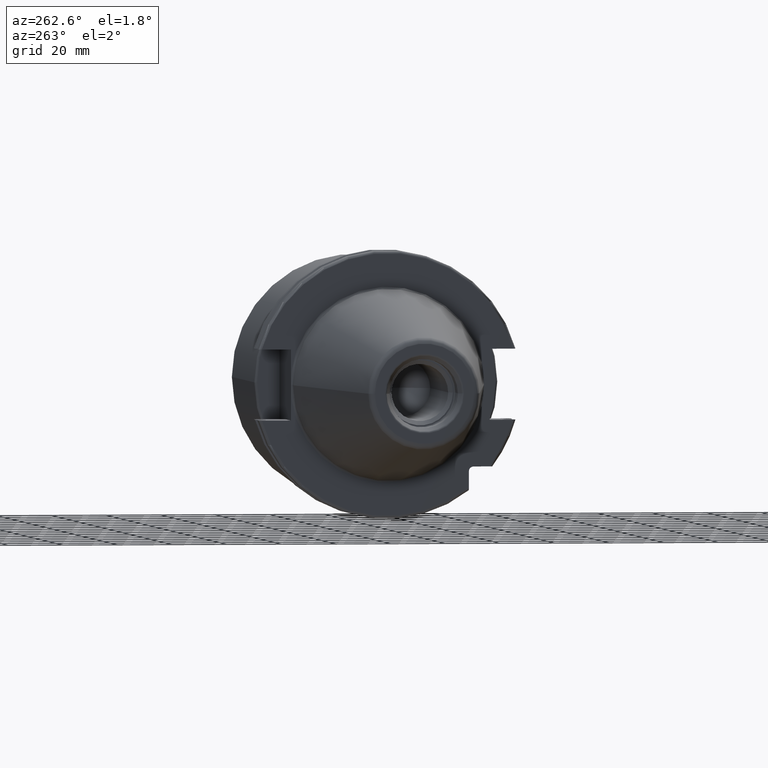
[diagram: clean part render]
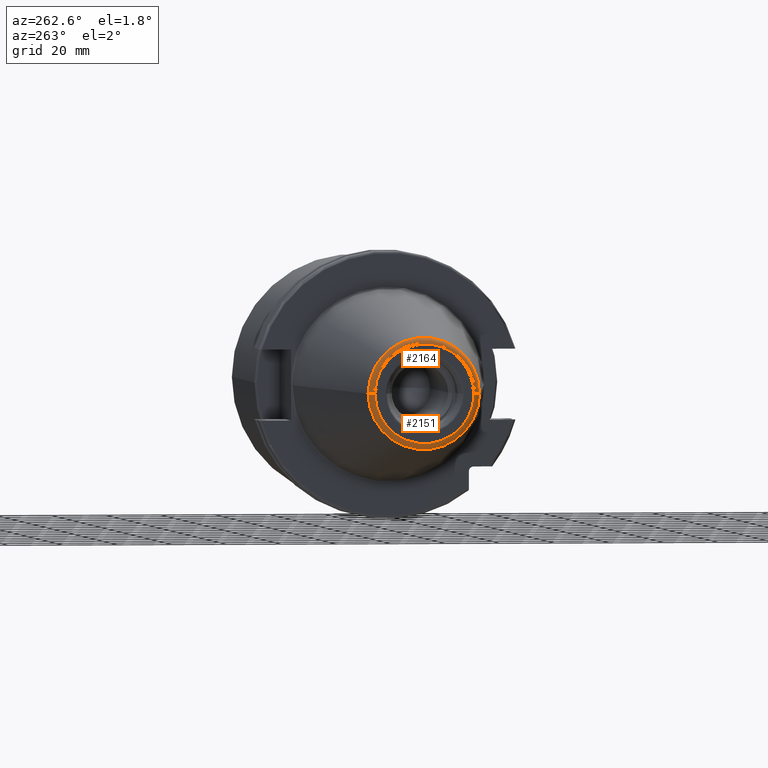
[diagram: same view with one multi-face feature highlighted, each face labeled with its STEP entity id]
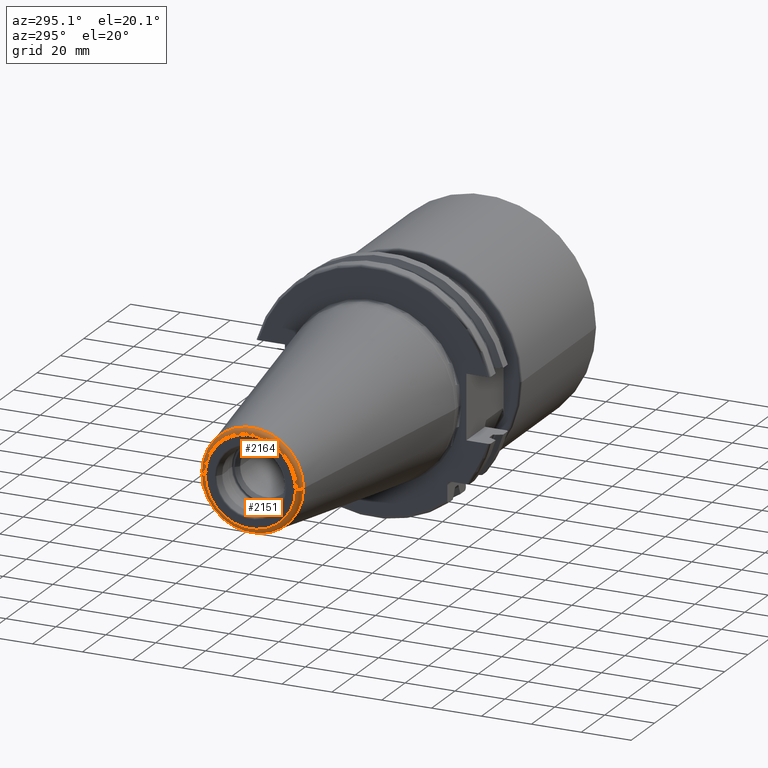
[diagram: same view with one multi-face feature highlighted, each face labeled with its STEP entity id]
A machine part, auxiliary view. The highlighted faces form ONE feature: a constant-radius fillet chain: 2 tangent blend faces with common blend radius 2.25 mm. The faces share edges in the B-rep.
A second angle (auxiliary view) of the same feature is appended — it is thin or edge-on in the first view.
Their STEP definitions:
[1] entity #2164 (Torus):
#7=CARTESIAN_POINT('',(-1.016E2,0.E0,0.E0));
#8=DIRECTION('',(1.E0,0.E0,0.E0));
#9=DIRECTION('',(0.E0,1.E0,0.E0));
#10=AXIS2_PLACEMENT_3D('',#7,#8,#9);
#22=CARTESIAN_POINT('',(-9.935E1,1.816144700117E1,0.E0));
#23=DIRECTION('',(0.E0,0.E0,1.E0));
#24=DIRECTION('',(-1.443186691705E-1,9.895312636440E-1,0.E0));
#25=AXIS2_PLACEMENT_3D('',#22,#23,#24);
#27=CARTESIAN_POINT('',(-9.935E1,-1.816144700117E1,0.E0));
#28=DIRECTION('',(0.E0,0.E0,-1.E0));
#29=DIRECTION('',(-1.443186691705E-1,-9.895312636440E-1,0.E0));
#30=AXIS2_PLACEMENT_3D('',#27,#28,#29);
#37=CARTESIAN_POINT('',(-9.967471700563E1,0.E0,0.E0));
#38=DIRECTION('',(1.E0,0.E0,0.E0));
#39=DIRECTION('',(0.E0,1.E0,0.E0));
#40=AXIS2_PLACEMENT_3D('',#37,#38,#39);
#1755=CARTESIAN_POINT('',(-9.967471700563E1,2.038789234437E1,0.E0));
#1756=CARTESIAN_POINT('',(-1.016E2,1.816144700117E1,0.E0));
#1757=VERTEX_POINT('',#1755);
#1758=VERTEX_POINT('',#1756);
#1759=CARTESIAN_POINT('',(-9.967471700563E1,-2.038789234437E1,0.E0));
#1760=CARTESIAN_POINT('',(-1.016E2,-1.816144700117E1,0.E0));
#1761=VERTEX_POINT('',#1759);
#1762=VERTEX_POINT('',#1760);
#2152=CARTESIAN_POINT('',(-9.935E1,0.E0,0.E0));
#2153=DIRECTION('',(1.E0,0.E0,0.E0));
#2154=DIRECTION('',(0.E0,-1.E0,0.E0));
#2155=AXIS2_PLACEMENT_3D('',#2152,#2153,#2154);
#2156=TOROIDAL_SURFACE('',#2155,1.816144700117E1,2.25E0);
#2157=ORIENTED_EDGE('',*,*,#2142,.F.);
#2159=ORIENTED_EDGE('',*,*,#2158,.T.);
#2160=ORIENTED_EDGE('',*,*,#2145,.T.);
#2161=ORIENTED_EDGE('',*,*,#2126,.F.);
#2162=EDGE_LOOP('',(#2157,#2159,#2160,#2161));
#2163=FACE_OUTER_BOUND('',#2162,.F.);
#2164=ADVANCED_FACE('',(#2163),#2156,.T.);
#11=CIRCLE('',#10,1.816144700117E1);
#26=CIRCLE('',#25,2.25E0);
#31=CIRCLE('',#30,2.25E0);
#41=CIRCLE('',#40,2.038789234437E1);
#2126=EDGE_CURVE('',#1758,#1762,#11,.T.);
#2142=EDGE_CURVE('',#1757,#1758,#26,.T.);
#2145=EDGE_CURVE('',#1761,#1762,#31,.T.);
#2158=EDGE_CURVE('',#1757,#1761,#41,.T.);
[2] entity #2151 (Torus):
#2=CARTESIAN_POINT('',(-1.016E2,0.E0,0.E0));
#3=DIRECTION('',(-1.E0,0.E0,0.E0));
#4=DIRECTION('',(0.E0,1.E0,0.E0));
#5=AXIS2_PLACEMENT_3D('',#2,#3,#4);
#22=CARTESIAN_POINT('',(-9.935E1,1.816144700117E1,0.E0));
#23=DIRECTION('',(0.E0,0.E0,1.E0));
#24=DIRECTION('',(-1.443186691705E-1,9.895312636440E-1,0.E0));
#25=AXIS2_PLACEMENT_3D('',#22,#23,#24);
#27=CARTESIAN_POINT('',(-9.935E1,-1.816144700117E1,0.E0));
#28=DIRECTION('',(0.E0,0.E0,-1.E0));
#29=DIRECTION('',(-1.443186691705E-1,-9.895312636440E-1,0.E0));
#30=AXIS2_PLACEMENT_3D('',#27,#28,#29);
#32=CARTESIAN_POINT('',(-9.967471700563E1,0.E0,0.E0));
#33=DIRECTION('',(-1.E0,0.E0,0.E0));
#34=DIRECTION('',(0.E0,1.E0,0.E0));
#35=AXIS2_PLACEMENT_3D('',#32,#33,#34);
#1755=CARTESIAN_POINT('',(-9.967471700563E1,2.038789234437E1,0.E0));
#1756=CARTESIAN_POINT('',(-1.016E2,1.816144700117E1,0.E0));
#1757=VERTEX_POINT('',#1755);
#1758=VERTEX_POINT('',#1756);
#1759=CARTESIAN_POINT('',(-9.967471700563E1,-2.038789234437E1,0.E0));
#1760=CARTESIAN_POINT('',(-1.016E2,-1.816144700117E1,0.E0));
#1761=VERTEX_POINT('',#1759);
#1762=VERTEX_POINT('',#1760);
#2137=CARTESIAN_POINT('',(-9.935E1,0.E0,0.E0));
#2138=DIRECTION('',(1.E0,0.E0,0.E0));
#2139=DIRECTION('',(0.E0,-1.E0,0.E0));
#2140=AXIS2_PLACEMENT_3D('',#2137,#2138,#2139);
#2141=TOROIDAL_SURFACE('',#2140,1.816144700117E1,2.25E0);
#2143=ORIENTED_EDGE('',*,*,#2142,.T.);
#2144=ORIENTED_EDGE('',*,*,#2124,.T.);
#2146=ORIENTED_EDGE('',*,*,#2145,.F.);
#2148=ORIENTED_EDGE('',*,*,#2147,.F.);
#2149=EDGE_LOOP('',(#2143,#2144,#2146,#2148));
#2150=FACE_OUTER_BOUND('',#2149,.F.);
#2151=ADVANCED_FACE('',(#2150),#2141,.T.);
#6=CIRCLE('',#5,1.816144700117E1);
#26=CIRCLE('',#25,2.25E0);
#31=CIRCLE('',#30,2.25E0);
#36=CIRCLE('',#35,2.038789234437E1);
#2124=EDGE_CURVE('',#1758,#1762,#6,.T.);
#2142=EDGE_CURVE('',#1757,#1758,#26,.T.);
#2145=EDGE_CURVE('',#1761,#1762,#31,.T.);
#2147=EDGE_CURVE('',#1757,#1761,#36,.T.);